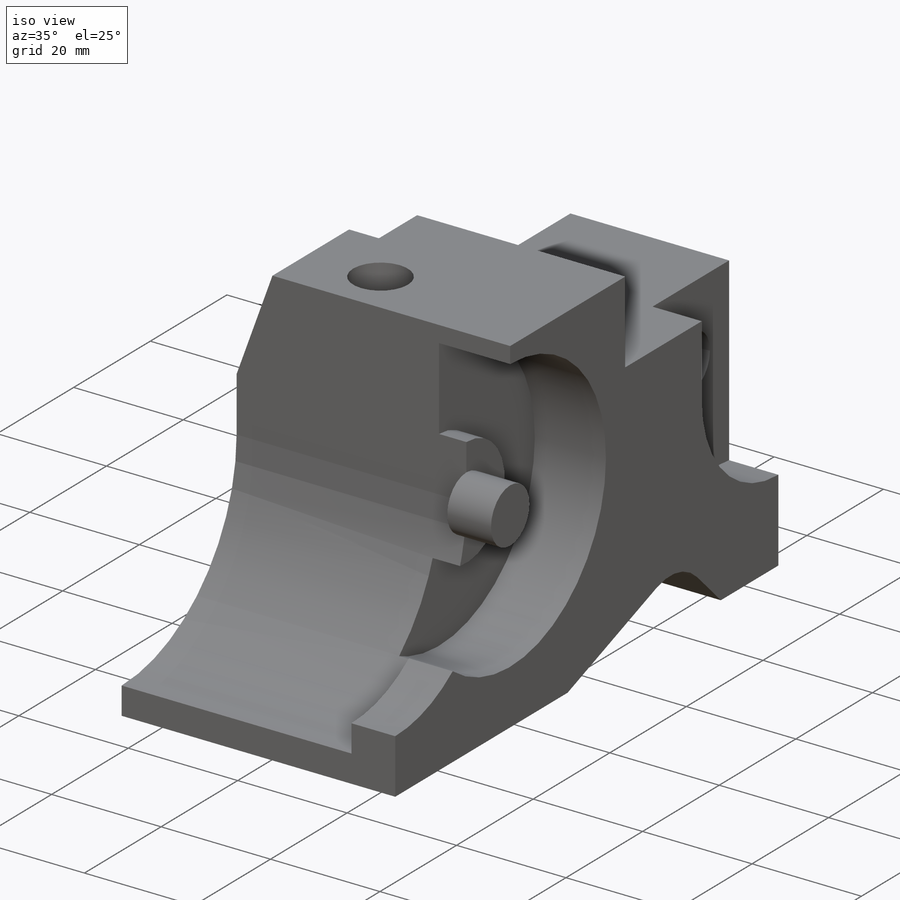
[diagram: iso view]
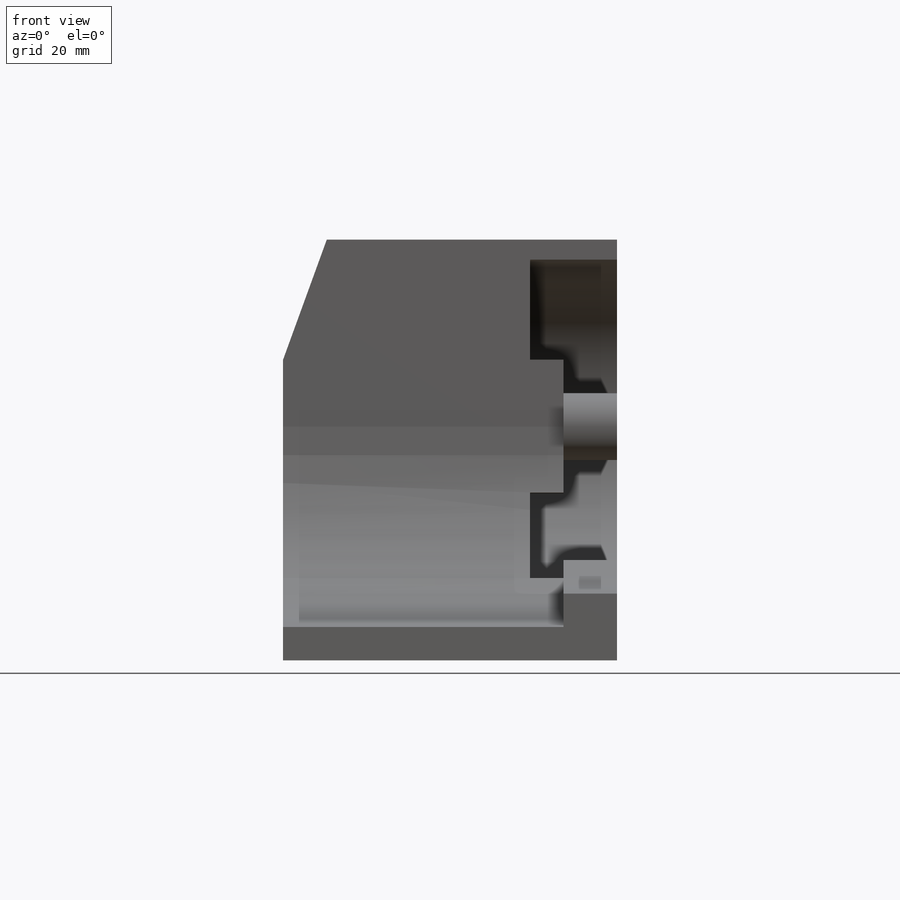
[diagram: front view]
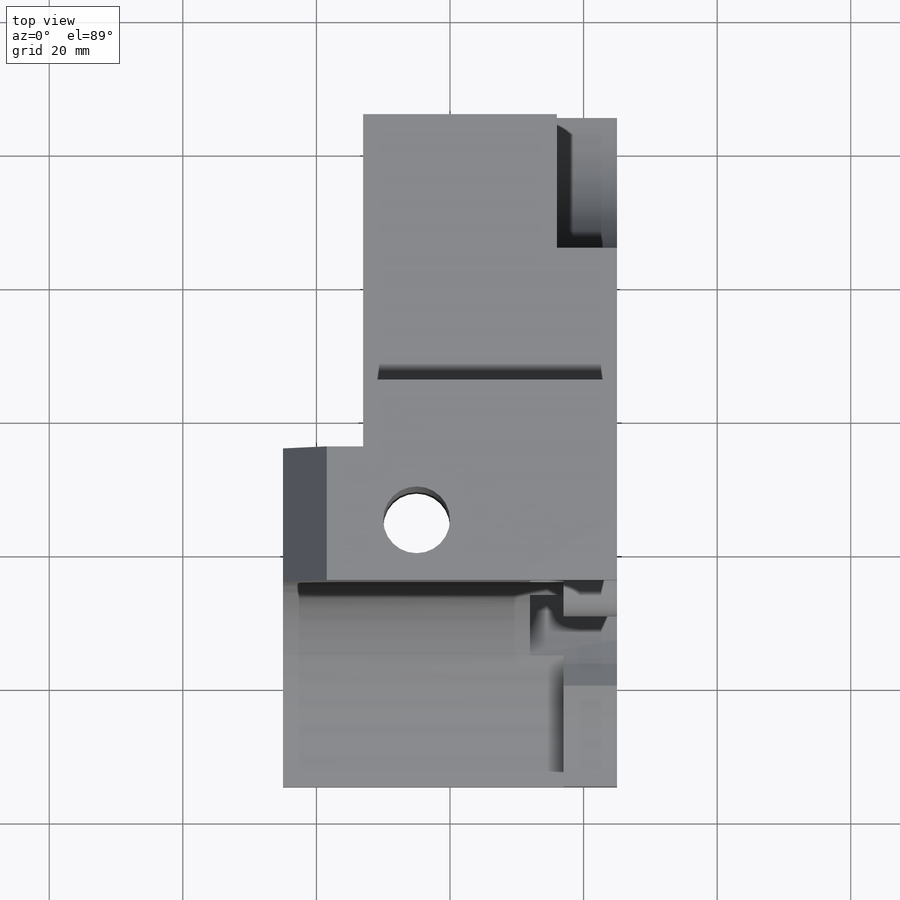
[diagram: top view]
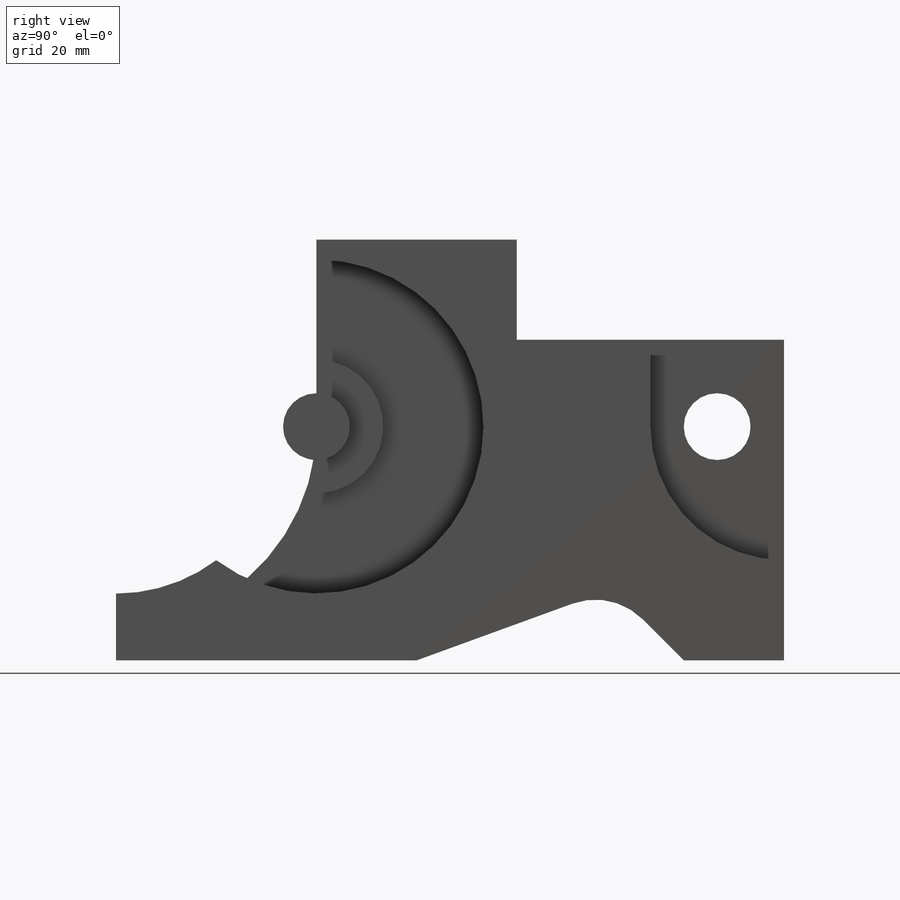
[diagram: right view]
SOLIDWORKS PART (.sldprt)
format: sldprt  version: not decoded by parser v0  size: 326,144 bytes
history: native  units: mm
features: sketch x13, cut_extrude x9, extrude x4, material x1 (+16 scaffold rows collapsed)
feature tree (43):
  scaffold x16  (default folders/planes/origin — collapsed)
  material  "Copper"
  sketch  "Sketch1"  dims[c1.D3=30.0mm c1.D11=10.0mm c1.D1=63.0mm c1.D2=100.0mm c1.D4=35.0mm c1.D5=40.0mm c1.D6=15.0mm c1.D7=15.0mm c1.D8=100.0mm c2.D8=45.0deg c2.D9=100.0mm c3.D9=20.0deg c3.D10=40.0mm]
  extrude  "Boss-Extrude1"  Depth=50mm
  sketch  "Sketch2"  dims[D1=50.0mm D2=35.0mm]
  cut_extrude  "Cut-Extrude1"  Depth=13mm
  sketch  "Sketch3"  dims[D1=20.0mm]
  extrude  "Boss-Extrude2"  Depth=5mm
  sketch  "Sketch4"  dims[D1=10.0mm]
  extrude  "Boss-Extrude3"  Depth=8mm
  sketch  "Sketch6"  dims[D1=5.0mm]
  extrude  "Boss-Extrude4"  Depth=8mm
  sketch  "Sketch7"  dims[D1=20.0mm D2=35.0mm]
  cut_extrude  "Cut-Extrude2"  Depth=9mm
  sketch  "Sketch8"  dims[D2=10.0mm D1=10.0mm D3=35.0mm]
  cut_extrude  "Cut-Extrude3"  [1 undecoded]
  sketch  "Sketch9"  dims[D1=50.0mm D2=12.0mm]
  cut_extrude  "Cut-Extrude4"  [1 undecoded]
  sketch  "Sketch10"  dims[c1.D1=28.0mm c2.D1=20.0deg c2.D2=18.0mm]
  cut_extrude  "Cut-Extrude5"  [1 undecoded]
  sketch  "Sketch11"  dims[c1.D1=10.0mm c1.D2=30.0mm c1.D3=~30.423688mm c2.D3=90.0deg c3.D3=9.0mm]
  cut_extrude  "Cut-Extrude6"  [1 undecoded]
  cut_extrude  "Cut-Extrude7"  [1 undecoded]
  sketch  "Sketch9<2>"
  sketch  "Sketch12"  dims[c1.D1=18.0mm c1.D2=28.0mm c2.D2=20.0deg]
  cut_extrude  "Cut-Extrude8"  [1 undecoded]
  sketch  "Sketch13"  dims[c1.D1=10.0mm c1.D2=30.0mm c1.D3=~30.000143mm c2.D3=90.0deg c3.D3=9.0mm]
  cut_extrude  "Cut-Extrude9"  [1 undecoded]
decode coverage: 18 of 26 modeling features carry decoded parameters
note: ~ marks probable driven/reference dimensions
note: 7 parameter values undecoded
summary: no parameter record found for 7 features
note: suppression state not decoded; provenance and decode notes live in map.json
